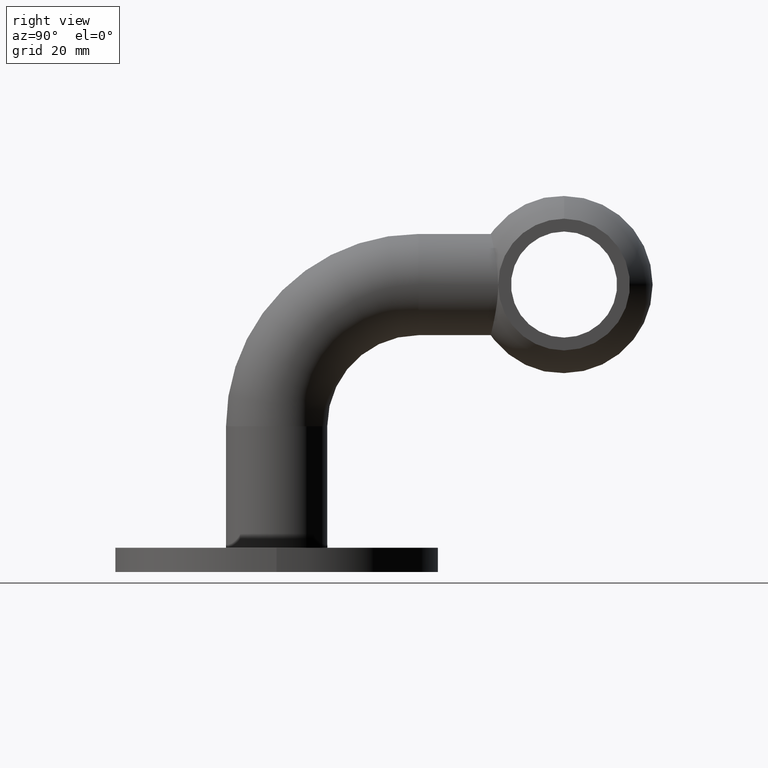
[diagram: clean part render]
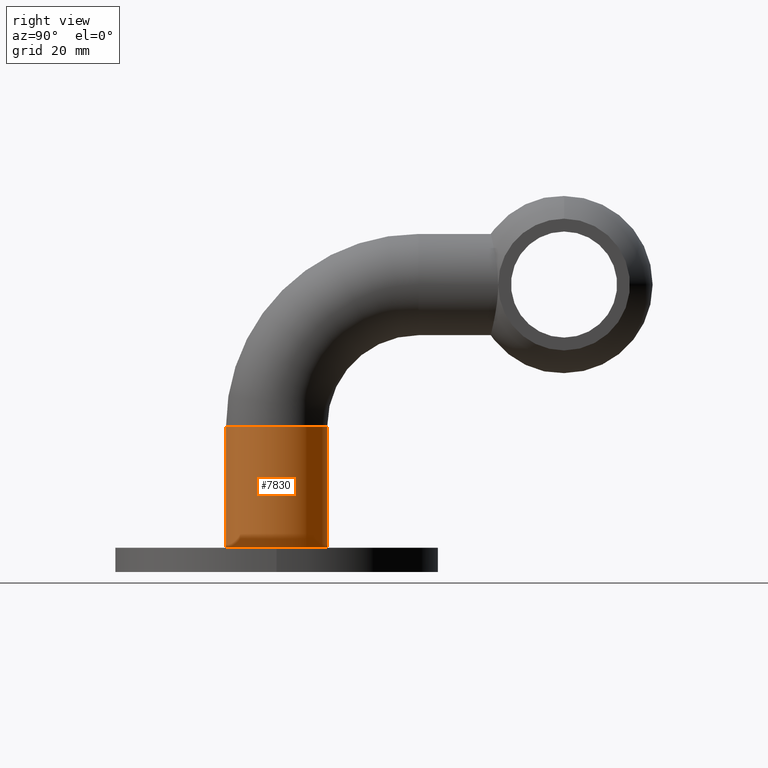
[diagram: same view with one face highlighted and labeled with its STEP entity id]
A machine part, right view. The second image highlights one B-rep face of the part: STEP entity #7830.
In plain terms, the highlighted cylindrical surface (partial cylindrical patch) has radius 12.5 mm, axis along (0, -0, 1).
Its self-contained STEP definition (entity closure, byte-faithful):
#159 = DIRECTION ( 'NONE',  ( 0.000000000000000000, -2.165917666722776495E-16, 1.000000000000000000 ) ) ;
#314 = CARTESIAN_POINT ( 'NONE',  ( 1.530808498934191521E-15, 12.49999999999999289, 35.99999999999998579 ) ) ;
#456 = CARTESIAN_POINT ( 'NONE',  ( 0.000000000000000000, -12.50000000000000178, 6.000000000000000000 ) ) ;
#725 = EDGE_CURVE ( 'NONE', #7838, #10995, #11378, .T. ) ;
#873 = CARTESIAN_POINT ( 'NONE',  ( 0.000000000000000000, -12.50000000000000711, 35.99999999999998579 ) ) ;
#886 = AXIS2_PLACEMENT_3D ( 'NONE', #9925, #1451, #8003 ) ;
#1317 = EDGE_CURVE ( 'NONE', #8622, #5265, #4062, .T. ) ;
#1451 = DIRECTION ( 'NONE',  ( -0.000000000000000000, -0.000000000000000000, -1.000000000000000000 ) ) ;
#1546 = VECTOR ( 'NONE', #9506, 1000.000000000000000 ) ;
#1867 = ORIENTED_EDGE ( 'NONE', *, *, #1317, .F. ) ;
#1999 = CARTESIAN_POINT ( 'NONE',  ( 0.000000000000000000, -12.50000000000000000, -2.707397083403470865E-15 ) ) ;
#2493 = EDGE_CURVE ( 'NONE', #10995, #5265, #2870, .T. ) ;
#2870 = CIRCLE ( 'NONE', #9743, 12.50000000000000000 ) ;
#3943 = EDGE_LOOP ( 'NONE', ( #3961, #9674, #10218, #1867 ) ) ;
#3961 = ORIENTED_EDGE ( 'NONE', *, *, #5422, .F. ) ;
#4062 = LINE ( 'NONE', #1999, #1546 ) ;
#4918 = FACE_OUTER_BOUND ( 'NONE', #3943, .T. ) ;
#5265 = VERTEX_POINT ( 'NONE', #873 ) ;
#5422 = EDGE_CURVE ( 'NONE', #7838, #8622, #6510, .T. ) ;
#6089 = VECTOR ( 'NONE', #159, 1000.000000000000000 ) ;
#6510 = CIRCLE ( 'NONE', #886, 12.50000000000000000 ) ;
#6745 = CARTESIAN_POINT ( 'NONE',  ( 1.530808498934191916E-15, 12.50000000000000000, 6.000000000000000000 ) ) ;
#6786 = DIRECTION ( 'NONE',  ( 0.000000000000000000, -1.000000000000000000, -2.165917666722776741E-16 ) ) ;
#7545 = CARTESIAN_POINT ( 'NONE',  ( 1.530808498934191521E-15, 12.50000000000000000, 2.707397083403470865E-15 ) ) ;
#7555 = CARTESIAN_POINT ( 'NONE',  ( 0.000000000000000000, 0.000000000000000000, 0.000000000000000000 ) ) ;
#7830 = ADVANCED_FACE ( 'NONE', ( #4918 ), #12084, .T. ) ;
#7838 = VERTEX_POINT ( 'NONE', #6745 ) ;
#8003 = DIRECTION ( 'NONE',  ( 1.000000000000000000, 0.000000000000000000, 0.000000000000000000 ) ) ;
#8240 = DIRECTION ( 'NONE',  ( 0.000000000000000000, 0.000000000000000000, -1.000000000000000000 ) ) ;
#8512 = AXIS2_PLACEMENT_3D ( 'NONE', #7555, #10415, #6786 ) ;
#8622 = VERTEX_POINT ( 'NONE', #456 ) ;
#9171 = DIRECTION ( 'NONE',  ( -1.000000000000000000, 0.000000000000000000, 0.000000000000000000 ) ) ;
#9506 = DIRECTION ( 'NONE',  ( 0.000000000000000000, -2.165917666722776495E-16, 1.000000000000000000 ) ) ;
#9674 = ORIENTED_EDGE ( 'NONE', *, *, #725, .T. ) ;
#9743 = AXIS2_PLACEMENT_3D ( 'NONE', #11948, #8240, #9171 ) ;
#9925 = CARTESIAN_POINT ( 'NONE',  ( 0.000000000000000000, -1.299550600033665897E-15, 6.000000000000000000 ) ) ;
#10218 = ORIENTED_EDGE ( 'NONE', *, *, #2493, .T. ) ;
#10415 = DIRECTION ( 'NONE',  ( 0.000000000000000000, -2.165917666722776495E-16, 1.000000000000000000 ) ) ;
#10995 = VERTEX_POINT ( 'NONE', #314 ) ;
#11378 = LINE ( 'NONE', #7545, #6089 ) ;
#11948 = CARTESIAN_POINT ( 'NONE',  ( 0.000000000000000000, -7.797303600201992620E-15, 35.99999999999998579 ) ) ;
#12084 = CYLINDRICAL_SURFACE ( 'NONE', #8512, 12.50000000000000000 ) ;